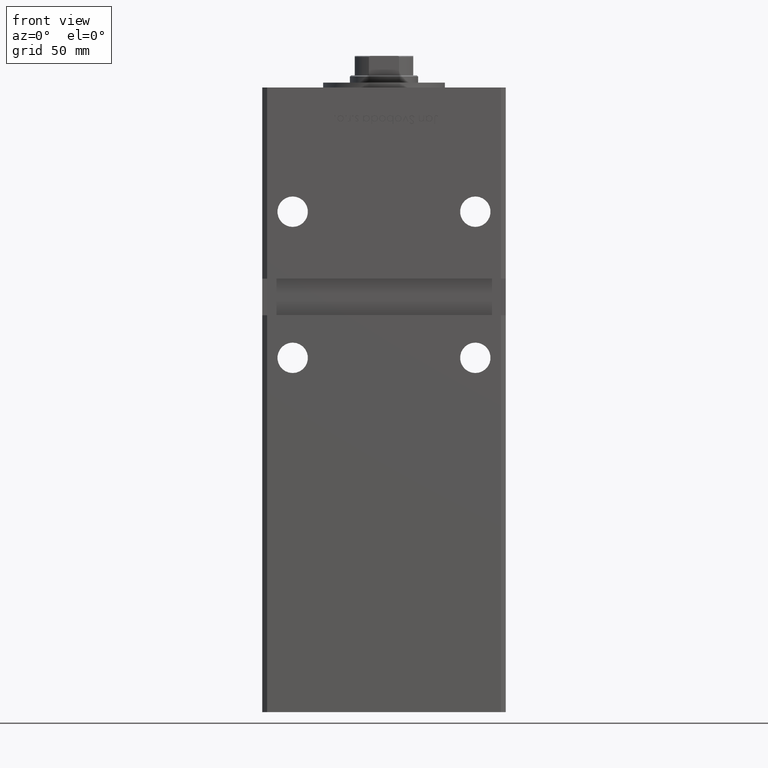
[diagram: clean part render]
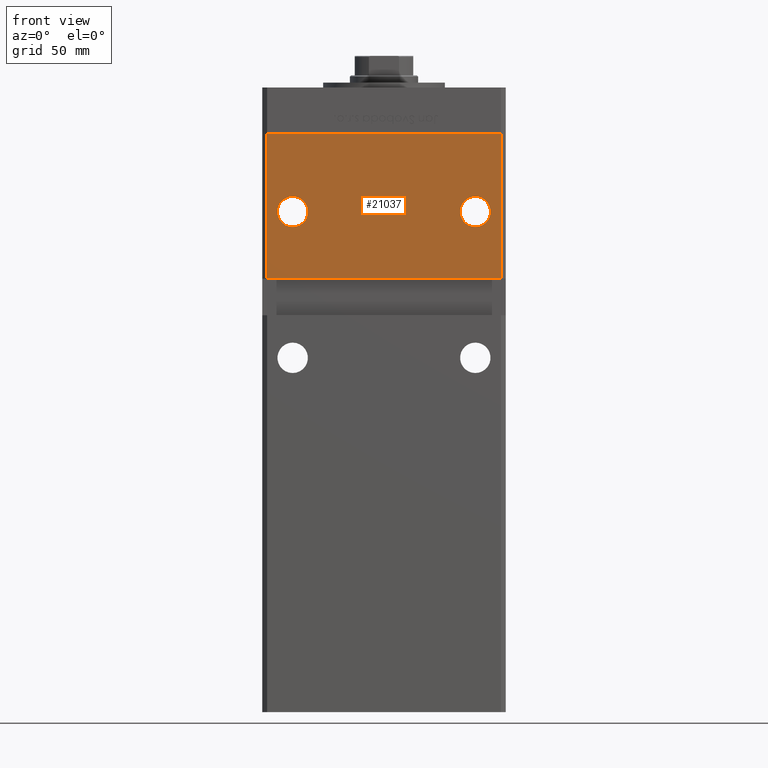
[diagram: same view with one face highlighted and labeled with its STEP entity id]
A machine part, front view. The second image highlights one B-rep face of the part: STEP entity #21037.
In plain terms, the highlighted planar face has unit normal (0, 1, 0).
Its self-contained STEP definition (entity closure, byte-faithful):
#739 = FACE_BOUND ( 'NONE', #1377, .T. ) ;
#780 = VERTEX_POINT ( 'NONE', #13881 ) ;
#803 = VECTOR ( 'NONE', #17848, 1000.000000000000000 ) ;
#1211 = DIRECTION ( 'NONE',  ( 0.000000000000000000, 0.000000000000000000, 1.000000000000000000 ) ) ;
#1377 = EDGE_LOOP ( 'NONE', ( #28816, #37316 ) ) ;
#1409 = EDGE_LOOP ( 'NONE', ( #16524, #17098 ) ) ;
#1536 = DIRECTION ( 'NONE',  ( 0.000000000000000000, 1.000000000000000000, 0.000000000000000000 ) ) ;
#2075 = DIRECTION ( 'NONE',  ( 0.000000000000000000, -0.000000000000000000, 1.000000000000000000 ) ) ;
#2165 = DIRECTION ( 'NONE',  ( 0.000000000000000000, 1.000000000000000000, 0.000000000000000000 ) ) ;
#3117 = EDGE_CURVE ( 'NONE', #24087, #43804, #39828, .T. ) ;
#4815 = AXIS2_PLACEMENT_3D ( 'NONE', #50005, #13111, #2075 ) ;
#4821 = EDGE_CURVE ( 'NONE', #32914, #780, #49838, .T. ) ;
#4876 = LINE ( 'NONE', #17804, #50591 ) ;
#4964 = CARTESIAN_POINT ( 'NONE',  ( -37.50000000000000000, -43.50000000000000000, 186.5000000000000000 ) ) ;
#8752 = CARTESIAN_POINT ( 'NONE',  ( -37.50000000000000000, -43.50000000000000000, 186.5000000000000000 ) ) ;
#9056 = PLANE ( 'NONE',  #4815 ) ;
#11316 = FACE_BOUND ( 'NONE', #1409, .T. ) ;
#12159 = ORIENTED_EDGE ( 'NONE', *, *, #27722, .F. ) ;
#12761 = CARTESIAN_POINT ( 'NONE',  ( 47.99999999999998579, -43.50000000000000000, 218.5000000000000000 ) ) ;
#13111 = DIRECTION ( 'NONE',  ( 0.000000000000000000, 1.000000000000000000, 0.000000000000000000 ) ) ;
#13881 = CARTESIAN_POINT ( 'NONE',  ( 37.50000000000000000, -43.50000000000000000, 180.2500000000000000 ) ) ;
#16524 = ORIENTED_EDGE ( 'NONE', *, *, #4821, .T. ) ;
#16857 = VERTEX_POINT ( 'NONE', #33419 ) ;
#17046 = LINE ( 'NONE', #53124, #35212 ) ;
#17098 = ORIENTED_EDGE ( 'NONE', *, *, #28988, .T. ) ;
#17804 = CARTESIAN_POINT ( 'NONE',  ( -49.99999999999998579, -43.50000000000000000, 159.0000000000000000 ) ) ;
#17848 = DIRECTION ( 'NONE',  ( -0.000000000000000000, -0.000000000000000000, -1.000000000000000000 ) ) ;
#21037 = ADVANCED_FACE ( 'NONE', ( #11316, #739, #41911 ), #9056, .F. ) ;
#21439 = CARTESIAN_POINT ( 'NONE',  ( 37.50000000000000000, -43.50000000000000000, 186.5000000000000000 ) ) ;
#24087 = VERTEX_POINT ( 'NONE', #31834 ) ;
#24361 = ORIENTED_EDGE ( 'NONE', *, *, #48242, .F. ) ;
#24702 = LINE ( 'NONE', #33043, #25715 ) ;
#25715 = VECTOR ( 'NONE', #45972, 1000.000000000000000 ) ;
#25911 = EDGE_CURVE ( 'NONE', #44047, #27709, #32471, .T. ) ;
#26825 = ORIENTED_EDGE ( 'NONE', *, *, #49575, .F. ) ;
#27315 = AXIS2_PLACEMENT_3D ( 'NONE', #8752, #28945, #45375 ) ;
#27333 = CARTESIAN_POINT ( 'NONE',  ( -37.50000000000000000, -43.50000000000000000, 180.2500000000000000 ) ) ;
#27709 = VERTEX_POINT ( 'NONE', #46620 ) ;
#27722 = EDGE_CURVE ( 'NONE', #16857, #43804, #4876, .T. ) ;
#28197 = CARTESIAN_POINT ( 'NONE',  ( -47.99999999999998579, -43.50000000000000000, 159.0000000000000000 ) ) ;
#28816 = ORIENTED_EDGE ( 'NONE', *, *, #32882, .T. ) ;
#28945 = DIRECTION ( 'NONE',  ( 0.000000000000000000, 1.000000000000000000, 0.000000000000000000 ) ) ;
#28988 = EDGE_CURVE ( 'NONE', #780, #32914, #39426, .T. ) ;
#29910 = DIRECTION ( 'NONE',  ( -1.000000000000000000, -0.000000000000000000, -0.000000000000000000 ) ) ;
#30719 = EDGE_LOOP ( 'NONE', ( #44299, #12159, #26825, #24361 ) ) ;
#30952 = DIRECTION ( 'NONE',  ( 0.000000000000000000, 0.000000000000000000, 1.000000000000000000 ) ) ;
#31834 = CARTESIAN_POINT ( 'NONE',  ( -47.99999999999998579, -43.50000000000000000, 218.5000000000000000 ) ) ;
#32471 = CIRCLE ( 'NONE', #27315, 6.250000000000005329 ) ;
#32882 = EDGE_CURVE ( 'NONE', #27709, #44047, #38716, .T. ) ;
#32914 = VERTEX_POINT ( 'NONE', #37257 ) ;
#33043 = CARTESIAN_POINT ( 'NONE',  ( -47.99999999999998579, -43.50000000000000000, 218.5000000000000000 ) ) ;
#33419 = CARTESIAN_POINT ( 'NONE',  ( 47.99999999999998579, -43.50000000000000000, 159.0000000000000000 ) ) ;
#35212 = VECTOR ( 'NONE', #45046, 1000.000000000000000 ) ;
#37001 = DIRECTION ( 'NONE',  ( 0.000000000000000000, 1.000000000000000000, 0.000000000000000000 ) ) ;
#37257 = CARTESIAN_POINT ( 'NONE',  ( 37.50000000000000000, -43.50000000000000000, 192.7500000000000000 ) ) ;
#37316 = ORIENTED_EDGE ( 'NONE', *, *, #25911, .T. ) ;
#38592 = AXIS2_PLACEMENT_3D ( 'NONE', #21439, #1536, #45409 ) ;
#38716 = CIRCLE ( 'NONE', #44747, 6.250000000000005329 ) ;
#39426 = CIRCLE ( 'NONE', #38592, 6.250000000000005329 ) ;
#39828 = LINE ( 'NONE', #52480, #803 ) ;
#41911 = FACE_OUTER_BOUND ( 'NONE', #30719, .T. ) ;
#42966 = AXIS2_PLACEMENT_3D ( 'NONE', #43084, #2165, #30952 ) ;
#43084 = CARTESIAN_POINT ( 'NONE',  ( 37.50000000000000000, -43.50000000000000000, 186.5000000000000000 ) ) ;
#43804 = VERTEX_POINT ( 'NONE', #28197 ) ;
#44047 = VERTEX_POINT ( 'NONE', #27333 ) ;
#44172 = VERTEX_POINT ( 'NONE', #12761 ) ;
#44299 = ORIENTED_EDGE ( 'NONE', *, *, #3117, .T. ) ;
#44747 = AXIS2_PLACEMENT_3D ( 'NONE', #4964, #37001, #1211 ) ;
#45046 = DIRECTION ( 'NONE',  ( -0.000000000000000000, -0.000000000000000000, -1.000000000000000000 ) ) ;
#45375 = DIRECTION ( 'NONE',  ( 0.000000000000000000, 0.000000000000000000, 1.000000000000000000 ) ) ;
#45409 = DIRECTION ( 'NONE',  ( 0.000000000000000000, 0.000000000000000000, 1.000000000000000000 ) ) ;
#45972 = DIRECTION ( 'NONE',  ( 1.000000000000000000, 0.000000000000000000, 0.000000000000000000 ) ) ;
#46620 = CARTESIAN_POINT ( 'NONE',  ( -37.50000000000000000, -43.50000000000000000, 192.7500000000000000 ) ) ;
#48242 = EDGE_CURVE ( 'NONE', #24087, #44172, #24702, .T. ) ;
#49575 = EDGE_CURVE ( 'NONE', #44172, #16857, #17046, .T. ) ;
#49838 = CIRCLE ( 'NONE', #42966, 6.250000000000005329 ) ;
#50005 = CARTESIAN_POINT ( 'NONE',  ( -47.99999999999998579, -43.50000000000000000, 218.5000000000000000 ) ) ;
#50591 = VECTOR ( 'NONE', #29910, 1000.000000000000000 ) ;
#52480 = CARTESIAN_POINT ( 'NONE',  ( -47.99999999999998579, -43.50000000000000000, 218.5000000000000000 ) ) ;
#53124 = CARTESIAN_POINT ( 'NONE',  ( 47.99999999999998579, -43.50000000000000000, 218.5000000000000000 ) ) ;